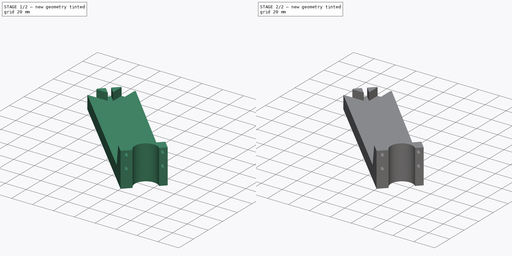
[diagram: build sequence overview — one tinted view per stage of 2, left to right]
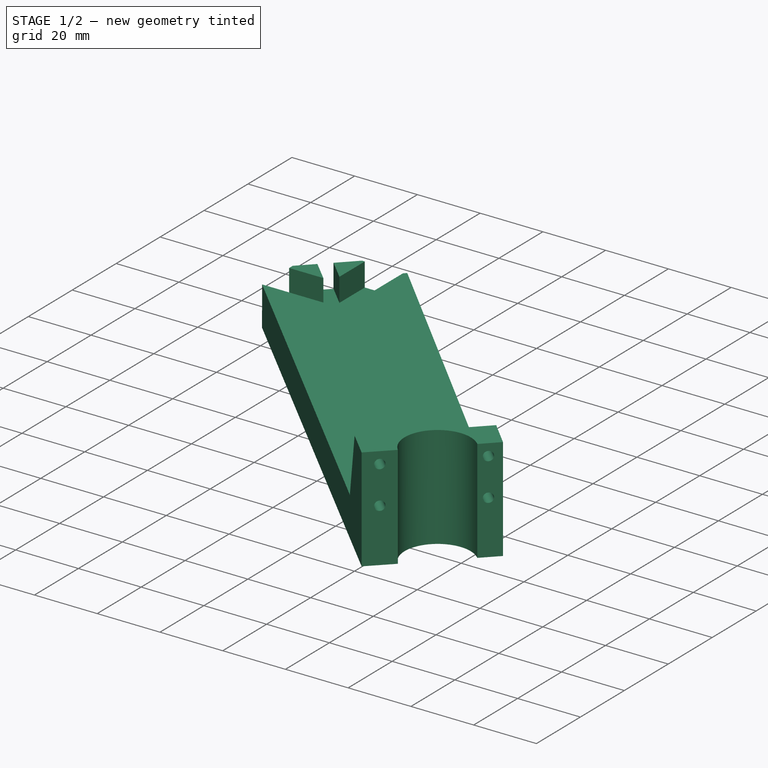
[diagram: stage 1 of 2 — iso view after this stage's code; geometry added in this stage tinted green]
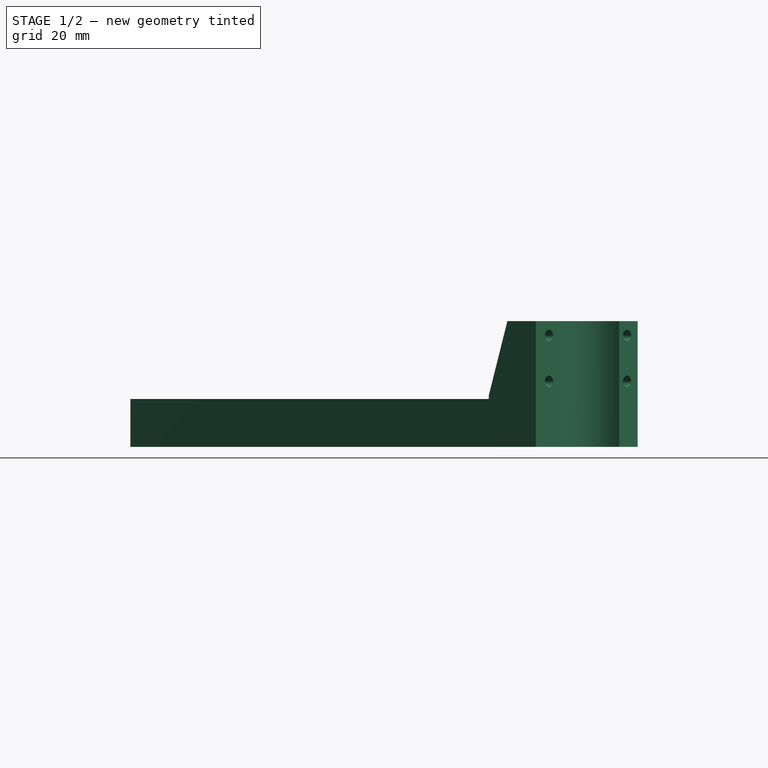
[diagram: stage 1 of 2 — front view after this stage's code; geometry added in this stage tinted green]
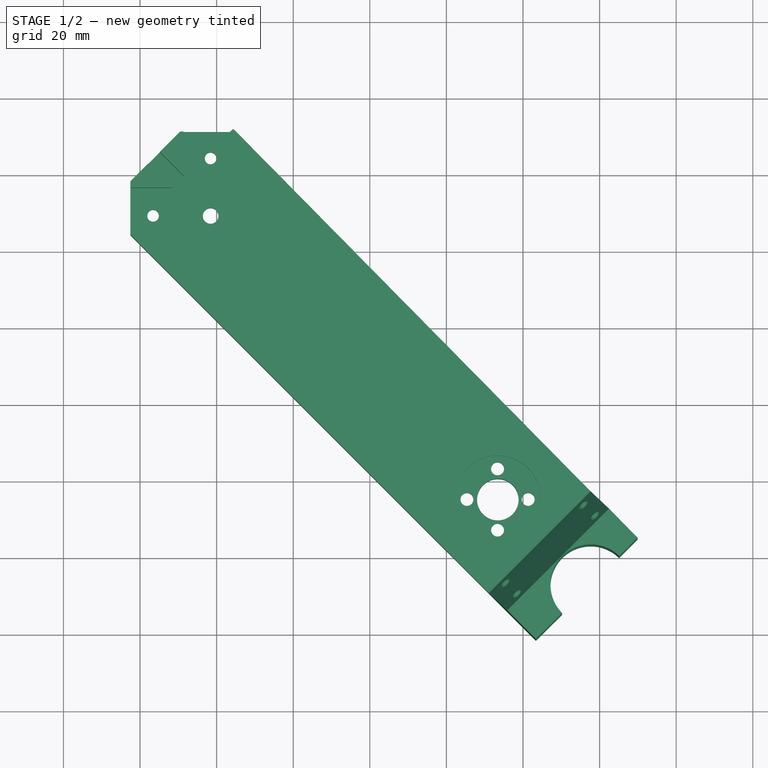
[diagram: stage 1 of 2 — top view after this stage's code; geometry added in this stage tinted green]
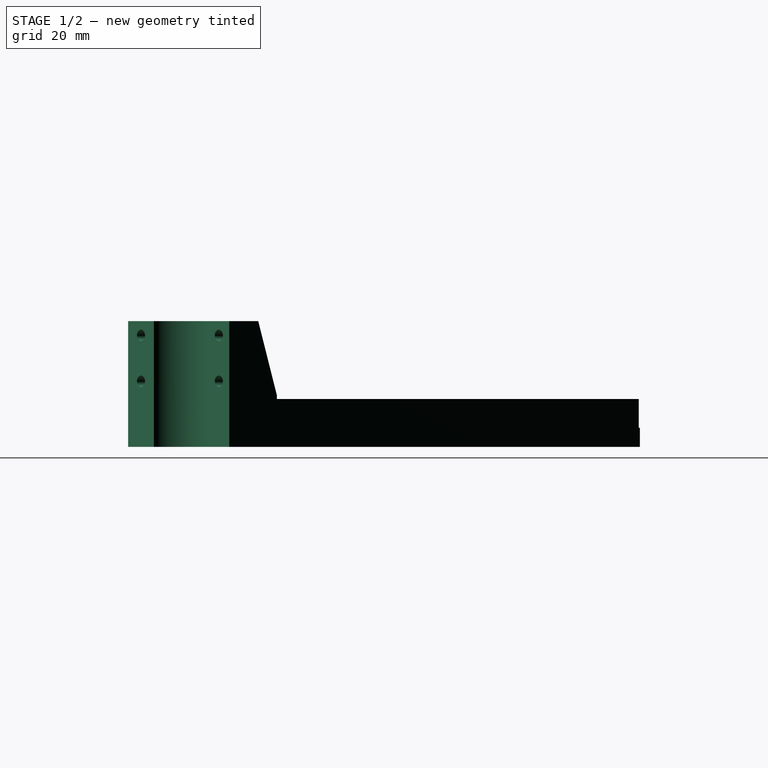
[diagram: stage 1 of 2 — right view after this stage's code; geometry added in this stage tinted green]
FCSTD DOCUMENT  (FreeCAD 2024.2R37179 (Git))
Label: right_bed_connector
License: All rights reserved
LicenseURL: http://en.wikipedia.org/wiki/All_rights_reserved
objects: Part::Feature×1, PartDesign::FeatureBase×1, PartDesign::Pad×1, Sketcher::SketchObject×1, PartDesign::Pocket×1, PartDesign::Body×1
note: 8 computed .brp shape members not serialized (recipe doc carries the construction recipe); baked Part::Feature solids carry a one-line shape summary decoded from their .brp

FEATURE [Part::Feature] Part__Mirroring001  label="Pad006 (Mirror #1)001"
  shape: bbox 132.4 x 133.6 x 32.82 mm, 71 faces (baked)
FEATURE [PartDesign::FeatureBase] BaseFeature
  BaseFeature = -> Part__Mirroring001
  Suppressed = false
FEATURE [PartDesign::Pad] Pad
  BaseFeature = -> BaseFeature
  Direction = (-0.707107,0.707107,7e-16)
  Length = 10
  Length2 = 10
  Profile = -> BaseFeature [Face28,Face29,Face13,Face14]
  Refine = true
  Suppressed = false
  Type = 3
  UpToFace = -> BaseFeature [Face9]
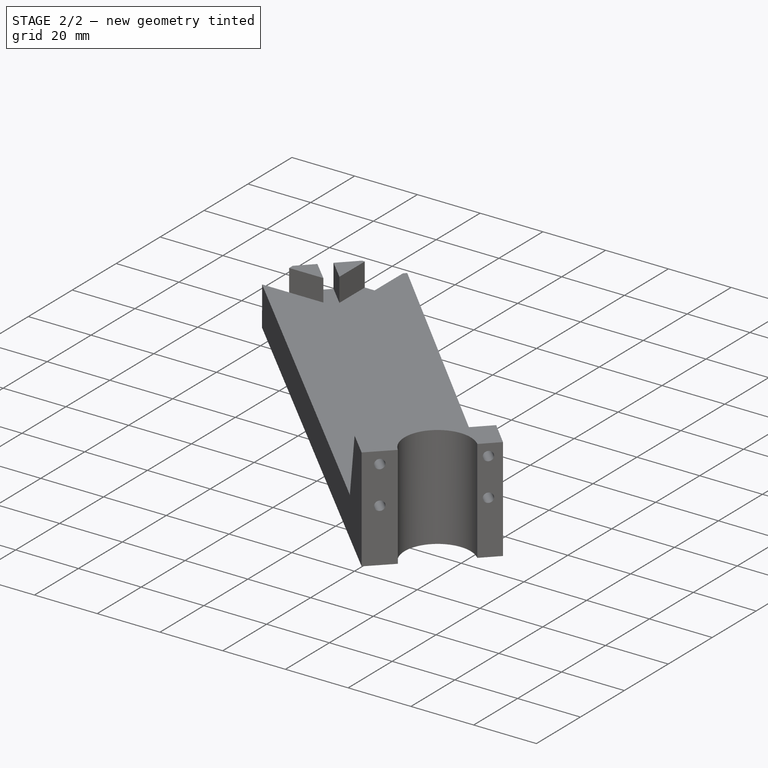
[diagram: stage 2 of 2 — iso view after this stage's code; geometry added in this stage tinted green]
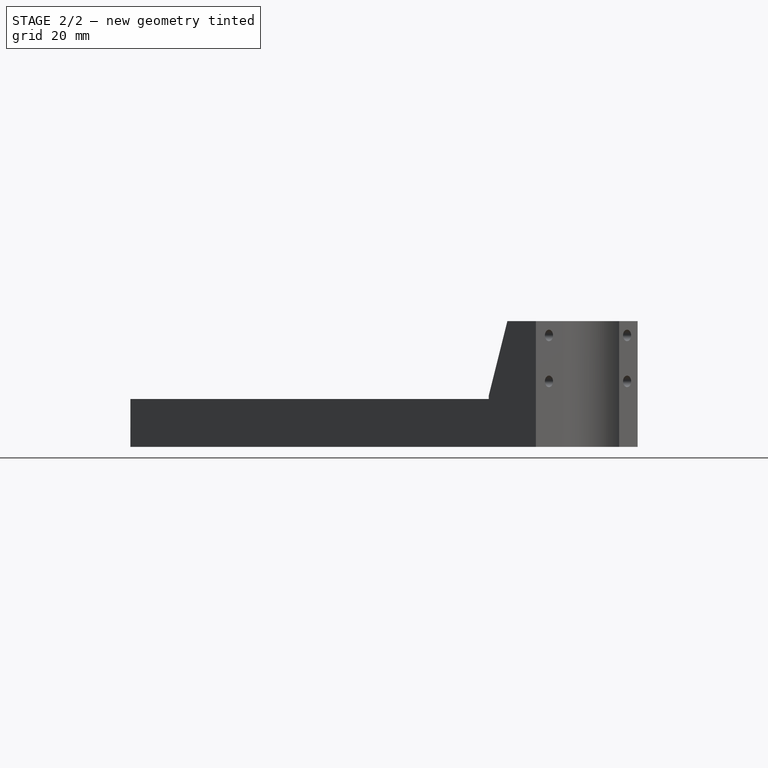
[diagram: stage 2 of 2 — front view after this stage's code; geometry added in this stage tinted green]
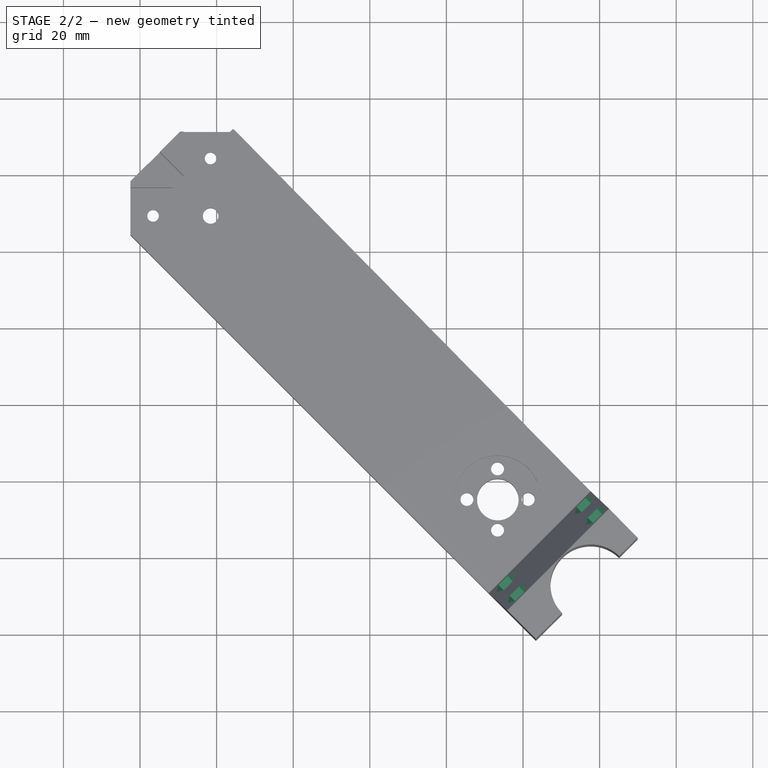
[diagram: stage 2 of 2 — top view after this stage's code; geometry added in this stage tinted green]
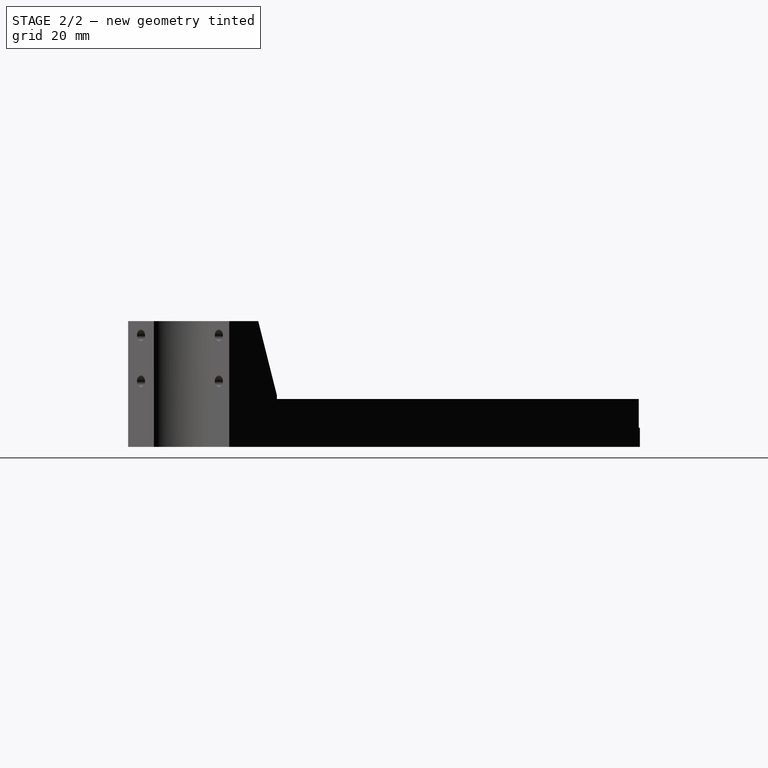
[diagram: stage 2 of 2 — right view after this stage's code; geometry added in this stage tinted green]
FEATURE [Sketcher::SketchObject] Sketch
  AttachmentOffset = pos=(0,0,-18) rot=(0,0,1;0rad)
  AttachmentSupport = -> [Pad]
  FullyConstrained = false
  MapMode = 5
  Placement = pos=(-97.6138,99.1173,-5.98e-14) rot=(0.865232,0.354523,0.354523;1.71505rad)
  sketch-geometry (28):
    g0: LineSegment StartX=-345.06 StartY=-164.899 StartZ=0 EndX=-346.735 EndY=-161.997 EndZ=0
    g1: LineSegment StartX=-346.735 StartY=-161.997 StartZ=0 EndX=-350.085 EndY=-161.997 EndZ=0
    g2: LineSegment StartX=-350.085 StartY=-161.997 StartZ=0 EndX=-351.76 EndY=-164.899 EndZ=0
    g3: LineSegment StartX=-351.76 StartY=-164.899 StartZ=0 EndX=-350.085 EndY=-167.8 EndZ=0
    g4: LineSegment StartX=-350.085 StartY=-167.8 StartZ=0 EndX=-346.735 EndY=-167.8 EndZ=0
    g5: LineSegment StartX=-346.735 StartY=-167.8 StartZ=0 EndX=-345.06 EndY=-164.899 EndZ=0
    g6: Circle CenterX=-348.41 CenterY=-164.899 CenterZ=0 NormalX=0 NormalY=0 NormalZ=1 AngleXU=0 Radius=3.35
    g7: LineSegment StartX=-345.052 StartY=-176.901 StartZ=0 EndX=-346.727 EndY=-174 EndZ=0
    g8: LineSegment StartX=-346.727 StartY=-174 StartZ=0 EndX=-350.077 EndY=-174 EndZ=0
    g9: LineSegment StartX=-350.077 StartY=-174 StartZ=0 EndX=-351.752 EndY=-176.901 EndZ=0
    g10: LineSegment StartX=-351.752 StartY=-176.901 StartZ=0 EndX=-350.077 EndY=-179.803 EndZ=0
    g11: LineSegment StartX=-350.077 StartY=-179.803 StartZ=0 EndX=-346.727 EndY=-179.803 EndZ=0
    g12: LineSegment StartX=-346.727 StartY=-179.803 StartZ=0 EndX=-345.052 EndY=-176.901 EndZ=0
    g13: Circle CenterX=-348.402 CenterY=-176.901 CenterZ=0 NormalX=0 NormalY=0 NormalZ=1 AngleXU=0 Radius=3.35
    g14: LineSegment StartX=-316.249 StartY=-176.904 StartZ=0 EndX=-317.924 EndY=-174.003 EndZ=0
    g15: LineSegment StartX=-317.924 StartY=-174.003 StartZ=0 EndX=-321.274 EndY=-174.003 EndZ=0
    g16: LineSegment StartX=-321.274 StartY=-174.003 StartZ=0 EndX=-322.949 EndY=-176.904 EndZ=0
    g17: LineSegment StartX=-322.949 StartY=-176.904 StartZ=0 EndX=-321.274 EndY=-179.805 EndZ=0
    g18: LineSegment StartX=-321.274 StartY=-179.805 StartZ=0 EndX=-317.924 EndY=-179.805 EndZ=0
    g19: LineSegment StartX=-317.924 StartY=-179.805 StartZ=0 EndX=-316.249 EndY=-176.904 EndZ=0
    g20: Circle CenterX=-319.599 CenterY=-176.904 CenterZ=0 NormalX=0 NormalY=0 NormalZ=1 AngleXU=0 Radius=3.35
    g21: LineSegment StartX=-316.265 StartY=-164.895 StartZ=0 EndX=-317.94 EndY=-161.994 EndZ=0
    g22: LineSegment StartX=-317.94 StartY=-161.994 StartZ=0 EndX=-321.29 EndY=-161.994 EndZ=0
    g23: LineSegment StartX=-321.29 StartY=-161.994 StartZ=0 EndX=-322.965 EndY=-164.895 EndZ=0
    g24: LineSegment StartX=-322.965 StartY=-164.895 StartZ=0 EndX=-321.29 EndY=-167.796 EndZ=0
    g25: LineSegment StartX=-321.29 StartY=-167.796 StartZ=0 EndX=-317.94 EndY=-167.796 EndZ=0
    g26: LineSegment StartX=-317.94 StartY=-167.796 StartZ=0 EndX=-316.265 EndY=-164.895 EndZ=0
    g27: Circle CenterX=-319.615 CenterY=-164.895 CenterZ=0 NormalX=0 NormalY=0 NormalZ=1 AngleXU=0 Radius=3.35
  constraints (56):
    c: Coincident(g0,g1)
    c: Coincident(g1,g2)
    c: Coincident(g2,g3)
    c: Coincident(g3,g4)
    c: Coincident(g4,g5)
    c: Coincident(g5,g0)
    c: Equal(g0, g1-g5) x5
    c: PointOnObject(g0,g6)
    c: PointOnObject(g1,g6)
    c: PointOnObject(g2,g6)
    c: PointOnObject(g3,g6)
    c: PointOnObject(g4,g6)
    c: PointOnObject(g5,g6)
    c: Radius(g6) = 3.35
    c: Coincident(g7,g8)
    c: Coincident(g8,g9)
    c: Coincident(g9,g10)
    c: Coincident(g10,g11)
    c: Coincident(g11,g12)
    c: Coincident(g12,g7)
    c: Equal(g7, g8-g12) x5
    c: PointOnObject(g7,g13)
    c: PointOnObject(g8,g13)
    c: PointOnObject(g9,g13)
    c: PointOnObject(g10,g13)
    c: PointOnObject(g11,g13)
    c: PointOnObject(g12,g13)
    c: Radius(g13) = 3.35
    c: Coincident(g14,g15)
    c: Coincident(g15,g16)
    c: Coincident(g16,g17)
    c: Coincident(g17,g18)
    c: Coincident(g18,g19)
    c: Coincident(g19,g14)
    c: Equal(g14, g15-g19) x5
    c: PointOnObject(g14,g20)
    c: PointOnObject(g15,g20)
    c: PointOnObject(g16,g20)
    c: PointOnObject(g17,g20)
    c: PointOnObject(g18,g20)
    c: PointOnObject(g19,g20)
    c: Radius(g20) = 3.35
    c: Coincident(g21,g22)
    c: Coincident(g22,g23)
    c: Coincident(g23,g24)
    c: Coincident(g24,g25)
    c: Coincident(g25,g26)
    c: Coincident(g26,g21)
    c: Equal(g21, g22-g26) x5
    c: PointOnObject(g21,g27)
    c: PointOnObject(g22,g27)
    c: PointOnObject(g23,g27)
    c: PointOnObject(g24,g27)
    c: PointOnObject(g25,g27)
    c: PointOnObject(g26,g27)
    c: Radius(g27) = 3.35
FEATURE [PartDesign::Pocket] Pocket
  BaseFeature = -> Pad
  Direction = (-0.701682,0.71249,1e-16)
  Length = 8
  Length2 = 5
  Profile = -> Sketch
  ReferenceAxis = -> Sketch [N_Axis]
  Refine = true
  Reversed = true
  Suppressed = false
  Type = 0
FEATURE [PartDesign::Body] Body
  BaseFeature = -> Part__Mirroring001
  Group = -> [BaseFeature,Pad,Sketch,Pocket]
  Origin = -> Origin
  Tip = -> Pocket
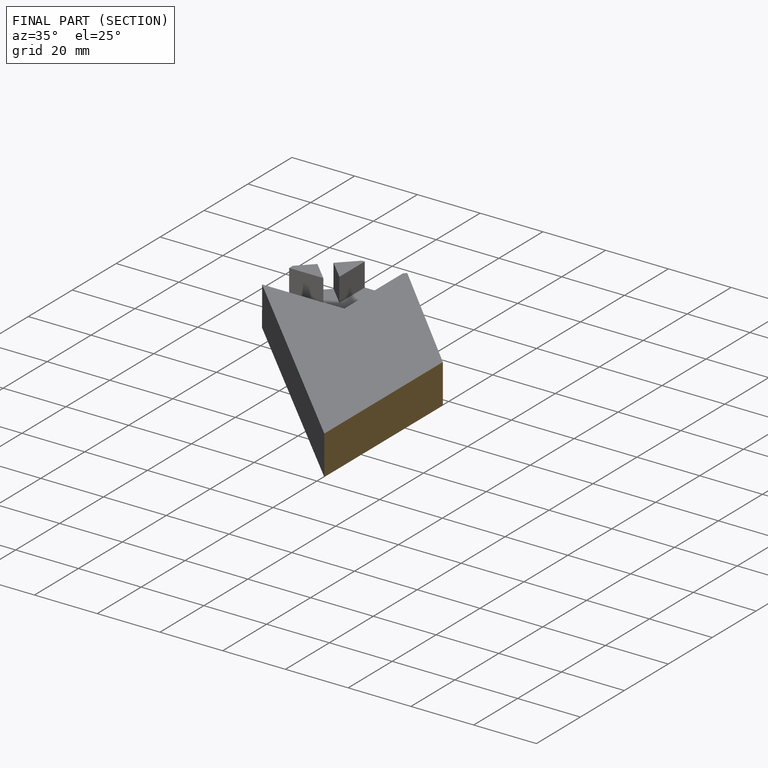
[diagram: finished part — half-section view (interior)]
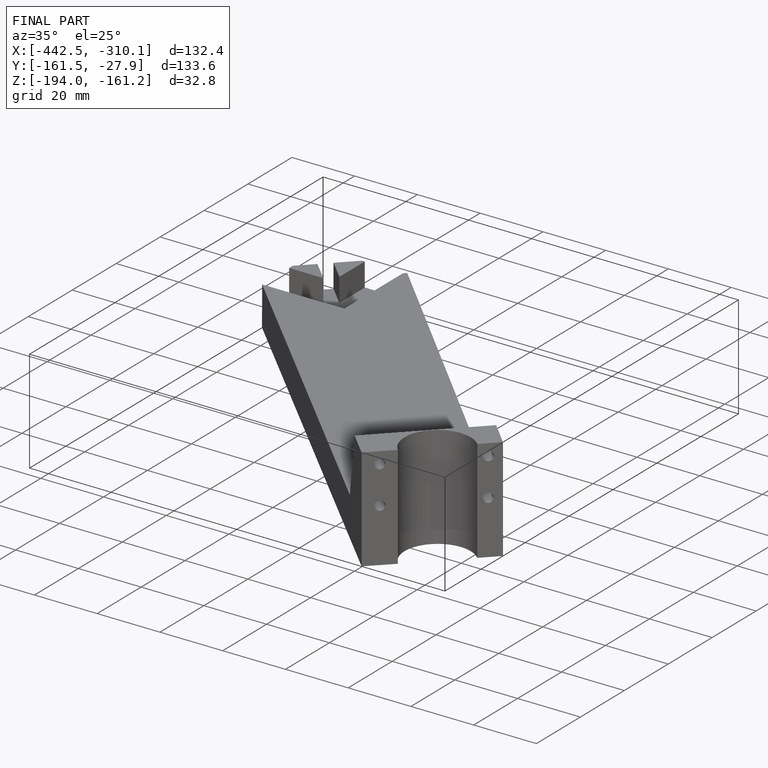
[diagram: finished part — iso view with bounding-box wireframe]
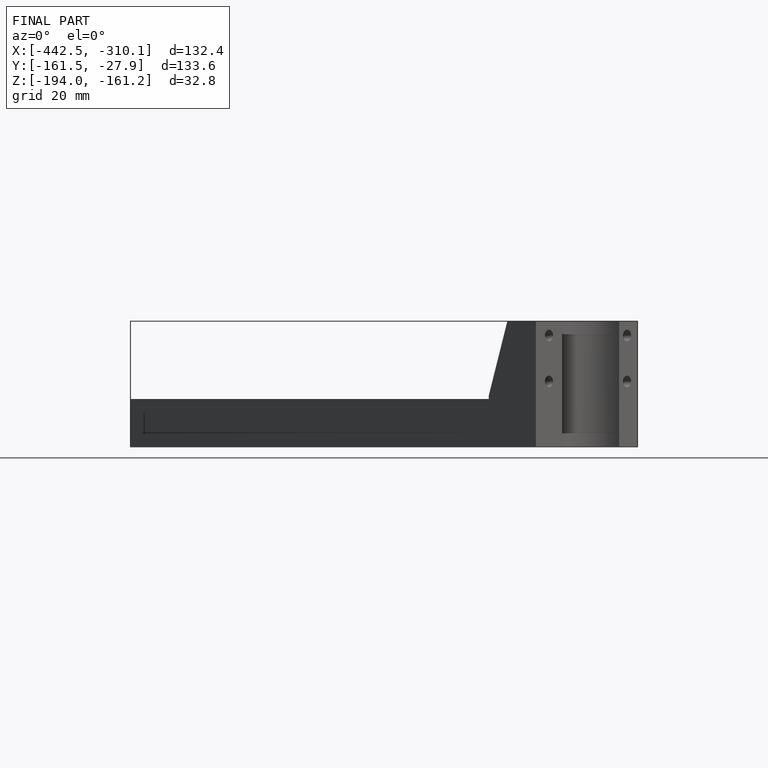
[diagram: finished part — front view with bounding-box wireframe]
